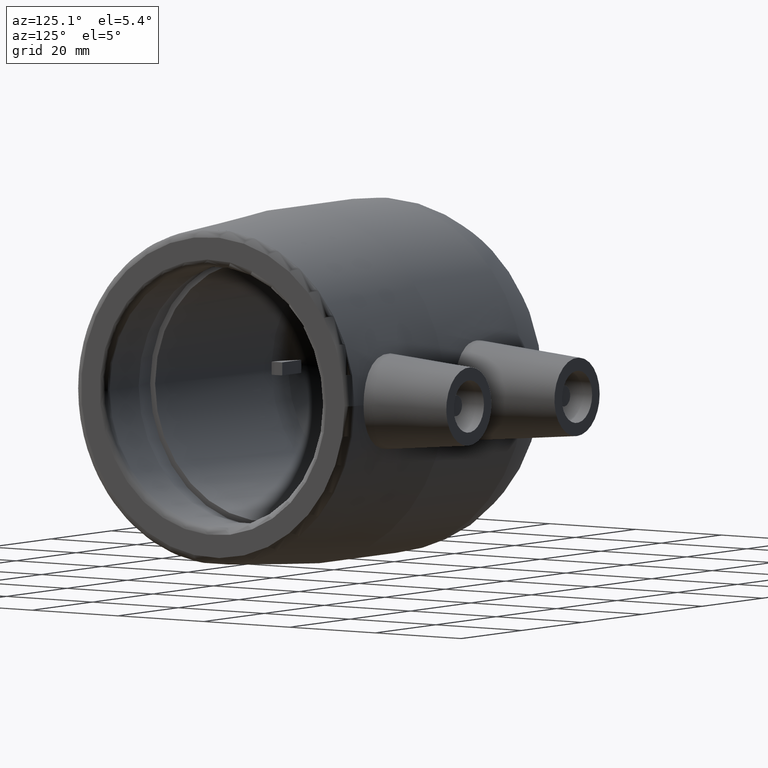
[diagram: clean part render]
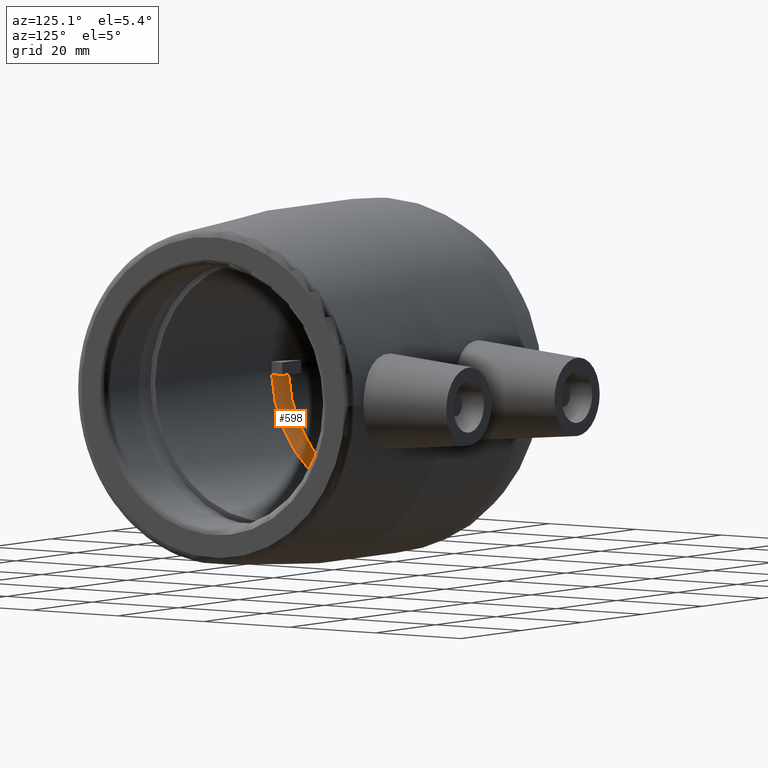
[diagram: same view with one face highlighted and labeled with its STEP entity id]
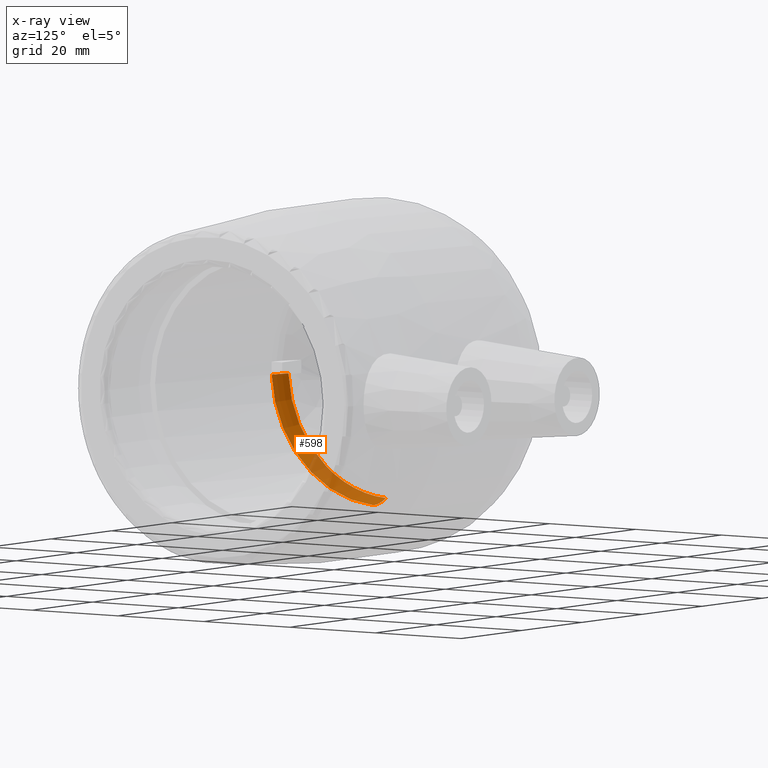
[diagram: x-ray of the same camera — body ghosted, the highlighted face saturated]
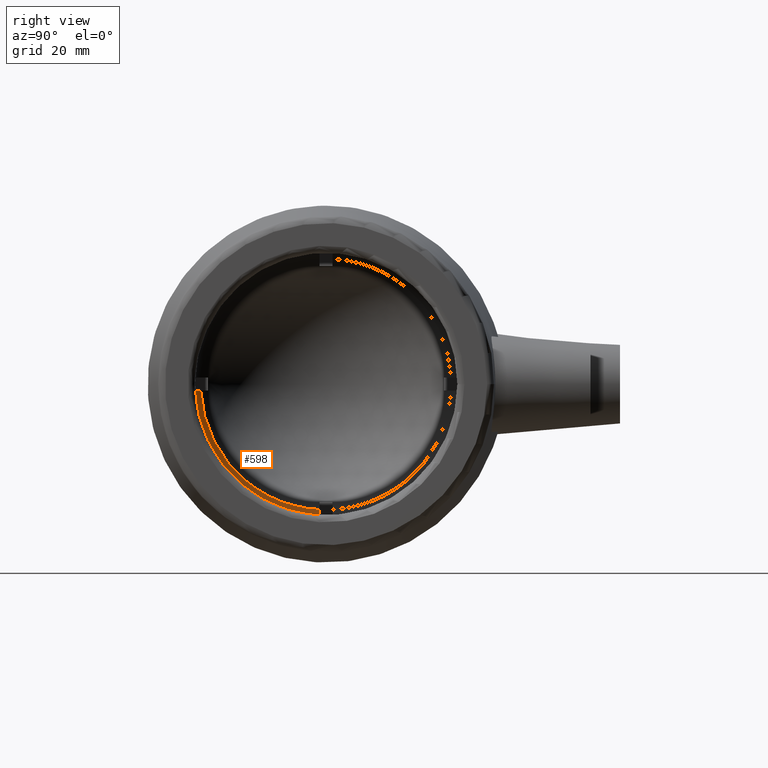
[diagram: same view with one face highlighted and labeled with its STEP entity id]
A machine part, auxiliary view. The second image highlights one B-rep face of the part: STEP entity #598.
The next image is the same camera in x-ray: the body ghosted, the highlighted face saturated — about 40% of this face is hidden behind the body in this view.
A second angle (right view) of the same face is appended — the face is thin or edge-on in the first view.
In plain terms, the highlighted toroidal blend (fillet) surface has major radius 16.8 mm and minor (blend) radius 8.2 mm.
Its self-contained STEP definition (entity closure, byte-faithful):
#50=TOROIDAL_SURFACE('',#666,16.8,8.2);
#64=B_SPLINE_CURVE_WITH_KNOTS('',3,(#1034,#1035,#1036,#1037,#1038,#1039,
#1040,#1041),.UNSPECIFIED.,.F.,.F.,(4,2,2,4),(0.,0.151719159108212,0.303438318216423,
0.399285759057804),.UNSPECIFIED.);
#65=B_SPLINE_CURVE_WITH_KNOTS('',3,(#1057,#1058,#1059,#1060,#1061,#1062,
#1063,#1064),.UNSPECIFIED.,.F.,.F.,(4,2,2,4),(-0.399285759057805,-0.303438318216423,
-0.151719159108212,0.),.UNSPECIFIED.);
#124=FACE_OUTER_BOUND('',#169,.T.);
#169=EDGE_LOOP('',(#469,#470,#471,#472));
#239=CIRCLE('',#663,23.9378238341969);
#242=CIRCLE('',#667,25.);
#286=VERTEX_POINT('',#1007);
#293=VERTEX_POINT('',#1033);
#297=VERTEX_POINT('',#1050);
#298=VERTEX_POINT('',#1056);
#358=EDGE_CURVE('',#286,#293,#64,.T.);
#364=EDGE_CURVE('',#297,#293,#239,.T.);
#367=EDGE_CURVE('',#297,#298,#65,.T.);
#368=EDGE_CURVE('',#298,#286,#242,.T.);
#469=ORIENTED_EDGE('',*,*,#358,.T.);
#470=ORIENTED_EDGE('',*,*,#364,.F.);
#471=ORIENTED_EDGE('',*,*,#367,.T.);
#472=ORIENTED_EDGE('',*,*,#368,.T.);
#598=ADVANCED_FACE('',(#124),#50,.F.);
#663=AXIS2_PLACEMENT_3D('',#1052,#804,#805);
#666=AXIS2_PLACEMENT_3D('',#1055,#810,#811);
#667=AXIS2_PLACEMENT_3D('',#1065,#812,#813);
#804=DIRECTION('center_axis',(1.,-6.52773886424224E-18,0.));
#805=DIRECTION('ref_axis',(0.,0.,-1.));
#810=DIRECTION('center_axis',(1.,-6.52773886424224E-18,0.));
#811=DIRECTION('ref_axis',(0.,0.,-1.));
#812=DIRECTION('center_axis',(1.,-6.52773886424224E-18,0.));
#813=DIRECTION('ref_axis',(0.,0.,-1.));
#1007=CARTESIAN_POINT('',(-55.,-1.25,-24.9687304442977));
#1033=CARTESIAN_POINT('',(-59.0362694300518,-1.25,-23.9051649213521));
#1034=CARTESIAN_POINT('Ctrl Pts',(-55.,-1.25,-24.9687304442977));
#1035=CARTESIAN_POINT('Ctrl Pts',(-55.5057305303607,-1.25,-24.9687304442977));
#1036=CARTESIAN_POINT('Ctrl Pts',(-56.0580476874996,-1.25,-24.9187967236543));
#1037=CARTESIAN_POINT('Ctrl Pts',(-57.1397053633371,-1.25,-24.7034897197029));
#1038=CARTESIAN_POINT('Ctrl Pts',(-57.6690460644542,-1.25,-24.5381173528286));
#1039=CARTESIAN_POINT('Ctrl Pts',(-58.4313785046102,-1.25,-24.2221417213433));
#1040=CARTESIAN_POINT('Ctrl Pts',(-58.7364293037084,-1.25,-24.0749490140149));
#1041=CARTESIAN_POINT('Ctrl Pts',(-59.0362694300518,-1.25,-23.9051649213522));
#1050=CARTESIAN_POINT('',(-59.0362694300518,-23.9051649213521,-1.25));
#1052=CARTESIAN_POINT('Origin',(-59.0362694300518,3.85373350358425E-16,
0.));
#1055=CARTESIAN_POINT('Origin',(-55.,3.59025637533323E-16,0.));
#1056=CARTESIAN_POINT('',(-55.,-24.9687304442977,-1.25));
#1057=CARTESIAN_POINT('Ctrl Pts',(-59.0362694300518,-23.9051649213522,-1.25));
#1058=CARTESIAN_POINT('Ctrl Pts',(-58.7364293037084,-24.0749490140149,-1.25));
#1059=CARTESIAN_POINT('Ctrl Pts',(-58.4313785046102,-24.2221417213433,-1.25));
#1060=CARTESIAN_POINT('Ctrl Pts',(-57.6690460644542,-24.5381173528286,-1.25));
#1061=CARTESIAN_POINT('Ctrl Pts',(-57.1397053633371,-24.7034897197029,-1.25));
#1062=CARTESIAN_POINT('Ctrl Pts',(-56.0580476874996,-24.9187967236543,-1.25));
#1063=CARTESIAN_POINT('Ctrl Pts',(-55.5057305303607,-24.9687304442977,-1.25));
#1064=CARTESIAN_POINT('Ctrl Pts',(-55.,-24.9687304442977,-1.25));
#1065=CARTESIAN_POINT('Origin',(-55.,3.59025637533323E-16,0.));